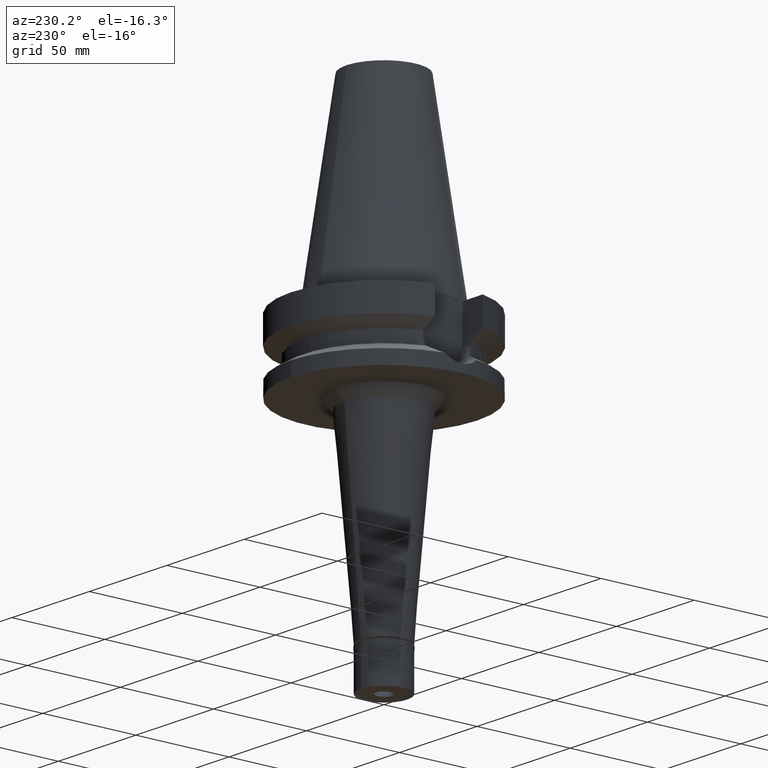
[diagram: clean part render]
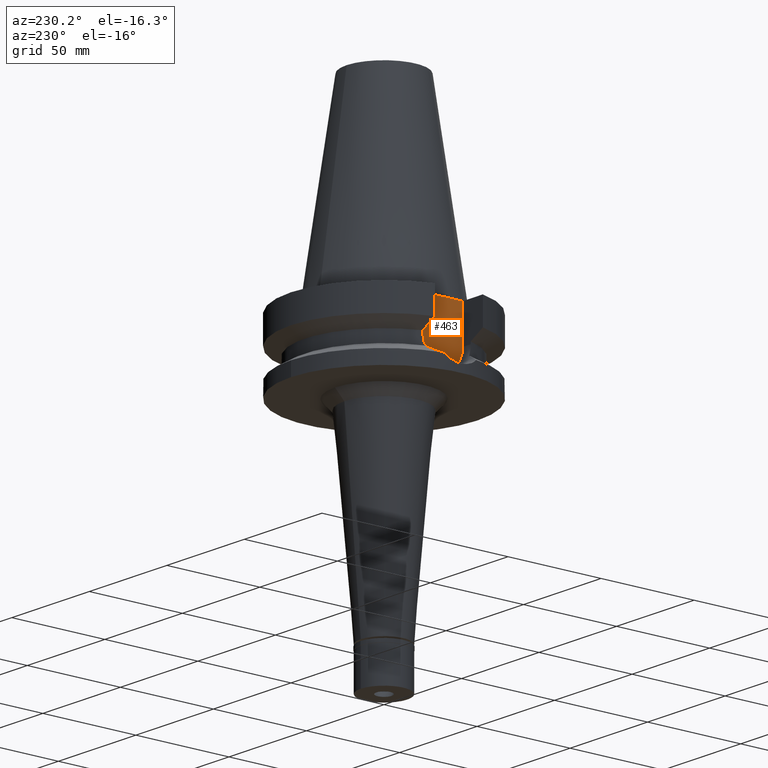
[diagram: same view with one face highlighted and labeled with its STEP entity id]
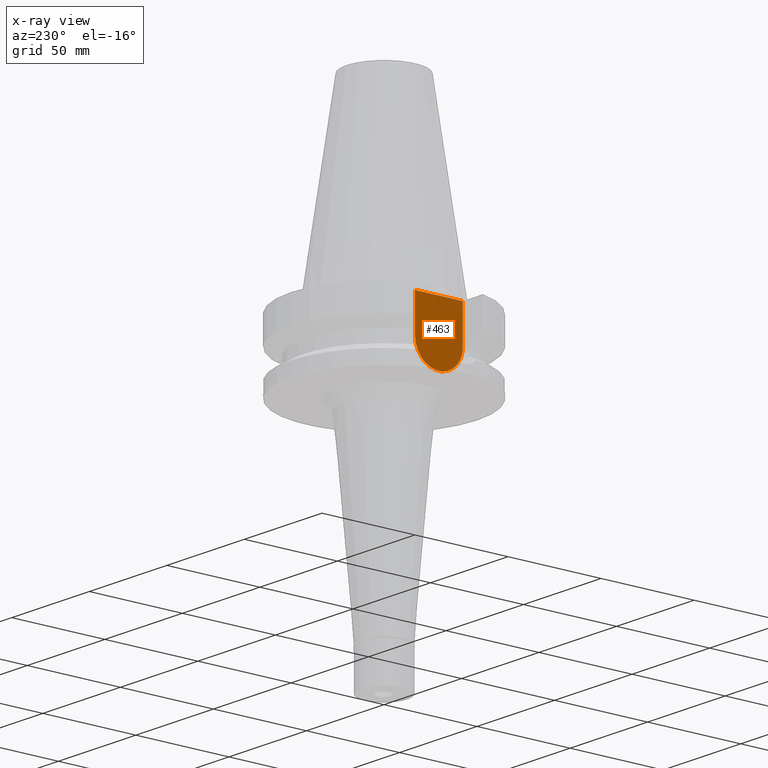
[diagram: x-ray of the same camera — body ghosted, the highlighted face saturated]
A machine part, auxiliary view. The second image highlights one B-rep face of the part: STEP entity #463.
The next image is the same camera in x-ray: the body ghosted, the highlighted face saturated — about 0% of this face is hidden behind the body in this view.
In plain terms, the highlighted planar face has unit normal (-1, 0, 0).
Its self-contained STEP definition (entity closure, byte-faithful):
#101 = AXIS2_PLACEMENT_3D ( 'NONE', #1278, #1730, #1008 ) ;
#230 = FACE_OUTER_BOUND ( 'NONE', #2529, .T. ) ;
#276 = CARTESIAN_POINT ( 'NONE',  ( -35.39999999999999858, -12.84999999999999964, -21.14999999999999858 ) ) ;
#357 = DIRECTION ( 'NONE',  ( 1.000000000000000000, 0.0000000000000000000, 0.0000000000000000000 ) ) ;
#452 = VERTEX_POINT ( 'NONE', #276 ) ;
#463 = ADVANCED_FACE ( 'NONE', ( #230 ), #2512, .T. ) ;
#560 = EDGE_CURVE ( 'NONE', #2792, #2655, #1773, .T. ) ;
#689 = LINE ( 'NONE', #2236, #2283 ) ;
#728 = CARTESIAN_POINT ( 'NONE',  ( -35.39999999999999858, 12.84999999999999964, -21.14999999999999858 ) ) ;
#1008 = DIRECTION ( 'NONE',  ( 0.0000000000000000000, 0.0000000000000000000, 1.000000000000000000 ) ) ;
#1041 = LINE ( 'NONE', #1284, #2888 ) ;
#1278 = CARTESIAN_POINT ( 'NONE',  ( -35.39999999999999858, 2.015768631397000034E-14, 0.0000000000000000000 ) ) ;
#1284 = CARTESIAN_POINT ( 'NONE',  ( -35.39999999999999858, 12.84999999999999964, -21.14999999999999858 ) ) ;
#1297 = CARTESIAN_POINT ( 'NONE',  ( -35.39999999999999858, -12.84999999999999964, -1.500000000000000000 ) ) ;
#1377 = ORIENTED_EDGE ( 'NONE', *, *, #2033, .F. ) ;
#1499 = DIRECTION ( 'NONE',  ( 0.0000000000000000000, 1.000000000000000000, 0.0000000000000000000 ) ) ;
#1615 = CARTESIAN_POINT ( 'NONE',  ( -35.39999999999999858, 1.497743035356999952E-14, -21.14999999999999858 ) ) ;
#1696 = DIRECTION ( 'NONE',  ( 0.0000000000000000000, 0.0000000000000000000, -1.000000000000000000 ) ) ;
#1730 = DIRECTION ( 'NONE',  ( -1.000000000000000000, 0.0000000000000000000, 0.0000000000000000000 ) ) ;
#1773 = LINE ( 'NONE', #1297, #2996 ) ;
#2033 = EDGE_CURVE ( 'NONE', #2515, #2655, #1041, .T. ) ;
#2192 = EDGE_CURVE ( 'NONE', #452, #2515, #2580, .T. ) ;
#2236 = CARTESIAN_POINT ( 'NONE',  ( -35.39999999999999858, -12.84999999999999964, -1.500000000000000000 ) ) ;
#2283 = VECTOR ( 'NONE', #1696, 1000.000000000000000 ) ;
#2383 = CARTESIAN_POINT ( 'NONE',  ( -35.39999999999999858, 12.84999999999999964, -1.500000000000000000 ) ) ;
#2407 = EDGE_CURVE ( 'NONE', #2792, #452, #689, .T. ) ;
#2512 = PLANE ( 'NONE',  #101 ) ;
#2515 = VERTEX_POINT ( 'NONE', #728 ) ;
#2529 = EDGE_LOOP ( 'NONE', ( #1377, #2768, #2827, #2971 ) ) ;
#2580 = CIRCLE ( 'NONE', #3141, 12.84999999999999964 ) ;
#2655 = VERTEX_POINT ( 'NONE', #2383 ) ;
#2768 = ORIENTED_EDGE ( 'NONE', *, *, #2192, .F. ) ;
#2792 = VERTEX_POINT ( 'NONE', #3129 ) ;
#2810 = DIRECTION ( 'NONE',  ( 0.0000000000000000000, 0.0000000000000000000, 1.000000000000000000 ) ) ;
#2824 = DIRECTION ( 'NONE',  ( 0.0000000000000000000, -1.000000000000000000, 0.0000000000000000000 ) ) ;
#2827 = ORIENTED_EDGE ( 'NONE', *, *, #2407, .F. ) ;
#2888 = VECTOR ( 'NONE', #2810, 1000.000000000000000 ) ;
#2971 = ORIENTED_EDGE ( 'NONE', *, *, #560, .T. ) ;
#2996 = VECTOR ( 'NONE', #1499, 1000.000000000000000 ) ;
#3129 = CARTESIAN_POINT ( 'NONE',  ( -35.39999999999999858, -12.84999999999999964, -1.500000000000000000 ) ) ;
#3141 = AXIS2_PLACEMENT_3D ( 'NONE', #1615, #357, #2824 ) ;